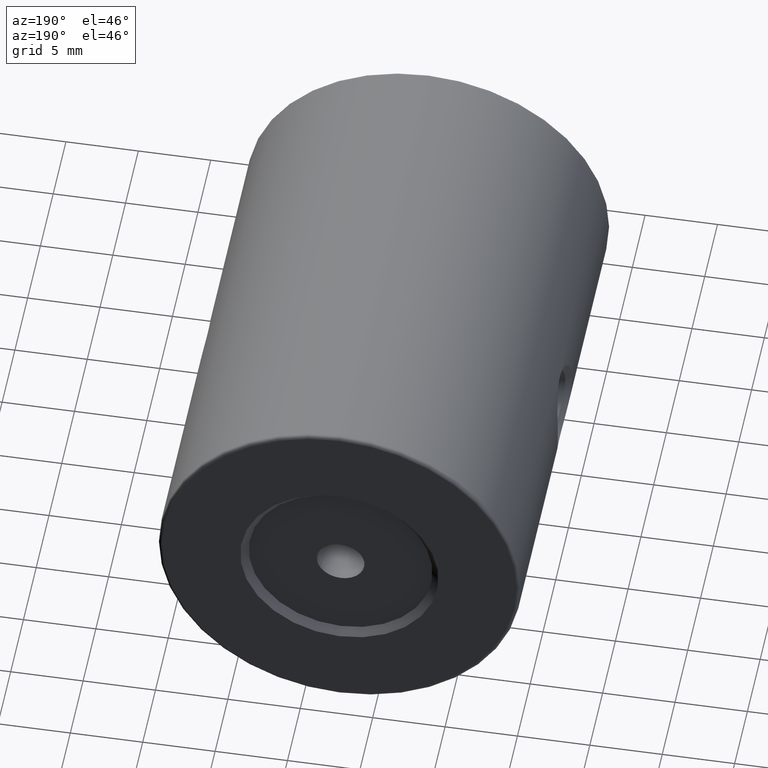
[diagram: clean part render]
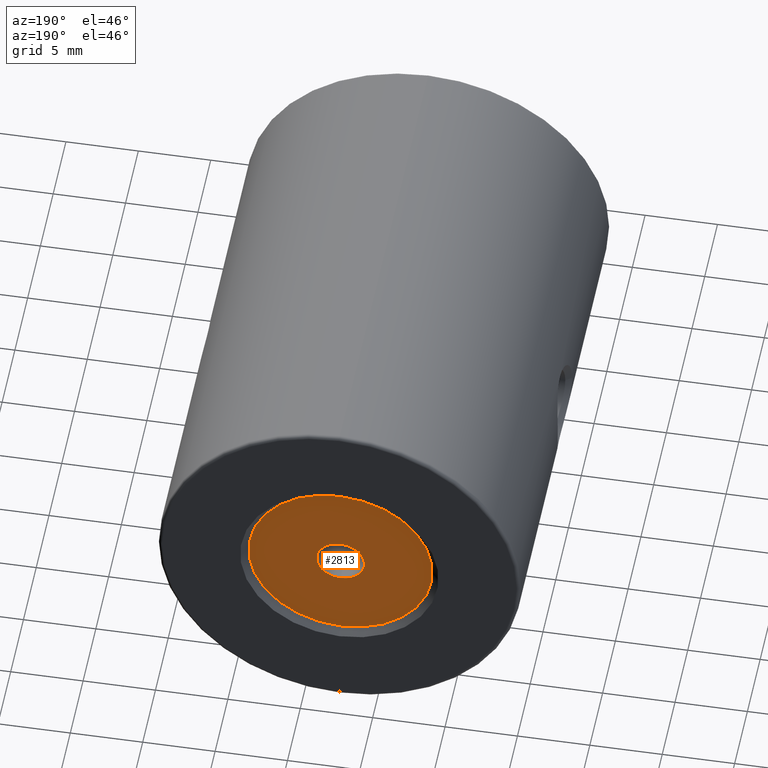
[diagram: same view with one face highlighted and labeled with its STEP entity id]
A machine part, auxiliary view. The second image highlights one B-rep face of the part: STEP entity #2813.
In plain terms, the highlighted planar face has unit normal (0, 1, 0).
Its self-contained STEP definition (entity closure, byte-faithful):
#142 = DIRECTION ( 'NONE',  ( 0.0000000000000000000, 0.0000000000000000000, 1.000000000000000000 ) ) ;
#218 = VERTEX_POINT ( 'NONE', #2146 ) ;
#330 = CARTESIAN_POINT ( 'NONE',  ( -22.50520183104453409, 18.39825218476939028, 50.00000000000000000 ) ) ;
#378 = EDGE_CURVE ( 'NONE', #562, #2323, #2343, .T. ) ;
#392 = CARTESIAN_POINT ( 'NONE',  ( -22.50520183104453409, 18.39825218476939028, 51.64999999999999858 ) ) ;
#544 = AXIS2_PLACEMENT_3D ( 'NONE', #2103, #1556, #1037 ) ;
#562 = VERTEX_POINT ( 'NONE', #3023 ) ;
#675 = CARTESIAN_POINT ( 'NONE',  ( -22.50520183104453409, 18.39825218476939028, 50.00000000000000000 ) ) ;
#846 = CARTESIAN_POINT ( 'NONE',  ( -22.50520183104453409, 18.39825218476939028, 43.64999999999999858 ) ) ;
#883 = ORIENTED_EDGE ( 'NONE', *, *, #2464, .F. ) ;
#900 = ORIENTED_EDGE ( 'NONE', *, *, #1486, .F. ) ;
#1037 = DIRECTION ( 'NONE',  ( 0.0000000000000000000, 0.0000000000000000000, 1.000000000000000000 ) ) ;
#1151 = CARTESIAN_POINT ( 'NONE',  ( -22.50520183104453409, 18.39825218476939028, 50.00000000000000000 ) ) ;
#1441 = CIRCLE ( 'NONE', #544, 1.649999999999998579 ) ;
#1481 = DIRECTION ( 'NONE',  ( 0.0000000000000000000, 1.000000000000000000, 0.0000000000000000000 ) ) ;
#1486 = EDGE_CURVE ( 'NONE', #3265, #218, #1441, .T. ) ;
#1548 = AXIS2_PLACEMENT_3D ( 'NONE', #675, #3302, #2037 ) ;
#1556 = DIRECTION ( 'NONE',  ( 0.0000000000000000000, 1.000000000000000000, 0.0000000000000000000 ) ) ;
#1603 = CIRCLE ( 'NONE', #1719, 6.350000000000001421 ) ;
#1719 = AXIS2_PLACEMENT_3D ( 'NONE', #2265, #3287, #2519 ) ;
#1729 = AXIS2_PLACEMENT_3D ( 'NONE', #1151, #1954, #3009 ) ;
#1775 = PLANE ( 'NONE',  #1548 ) ;
#1948 = EDGE_LOOP ( 'NONE', ( #900, #883 ) ) ;
#1954 = DIRECTION ( 'NONE',  ( 0.0000000000000000000, 1.000000000000000000, 0.0000000000000000000 ) ) ;
#2037 = DIRECTION ( 'NONE',  ( 0.0000000000000000000, -0.0000000000000000000, 1.000000000000000000 ) ) ;
#2103 = CARTESIAN_POINT ( 'NONE',  ( -22.50520183104453409, 18.39825218476939028, 50.00000000000000000 ) ) ;
#2146 = CARTESIAN_POINT ( 'NONE',  ( -22.50520183104453409, 18.39825218476939028, 48.35000000000000142 ) ) ;
#2265 = CARTESIAN_POINT ( 'NONE',  ( -22.50520183104453409, 18.39825218476939028, 50.00000000000000000 ) ) ;
#2282 = FACE_OUTER_BOUND ( 'NONE', #3114, .T. ) ;
#2323 = VERTEX_POINT ( 'NONE', #846 ) ;
#2343 = CIRCLE ( 'NONE', #1729, 6.350000000000001421 ) ;
#2447 = CIRCLE ( 'NONE', #2658, 1.649999999999998579 ) ;
#2464 = EDGE_CURVE ( 'NONE', #218, #3265, #2447, .T. ) ;
#2516 = ORIENTED_EDGE ( 'NONE', *, *, #378, .T. ) ;
#2519 = DIRECTION ( 'NONE',  ( 0.0000000000000000000, 0.0000000000000000000, 1.000000000000000000 ) ) ;
#2658 = AXIS2_PLACEMENT_3D ( 'NONE', #330, #1481, #142 ) ;
#2778 = FACE_BOUND ( 'NONE', #1948, .T. ) ;
#2796 = EDGE_CURVE ( 'NONE', #2323, #562, #1603, .T. ) ;
#2813 = ADVANCED_FACE ( 'NONE', ( #2778, #2282 ), #1775, .T. ) ;
#3009 = DIRECTION ( 'NONE',  ( 0.0000000000000000000, 0.0000000000000000000, 1.000000000000000000 ) ) ;
#3023 = CARTESIAN_POINT ( 'NONE',  ( -22.50520183104453409, 18.39825218476939028, 56.35000000000000142 ) ) ;
#3073 = ORIENTED_EDGE ( 'NONE', *, *, #2796, .T. ) ;
#3114 = EDGE_LOOP ( 'NONE', ( #2516, #3073 ) ) ;
#3265 = VERTEX_POINT ( 'NONE', #392 ) ;
#3287 = DIRECTION ( 'NONE',  ( 0.0000000000000000000, 1.000000000000000000, 0.0000000000000000000 ) ) ;
#3302 = DIRECTION ( 'NONE',  ( 0.0000000000000000000, 1.000000000000000000, 0.0000000000000000000 ) ) ;